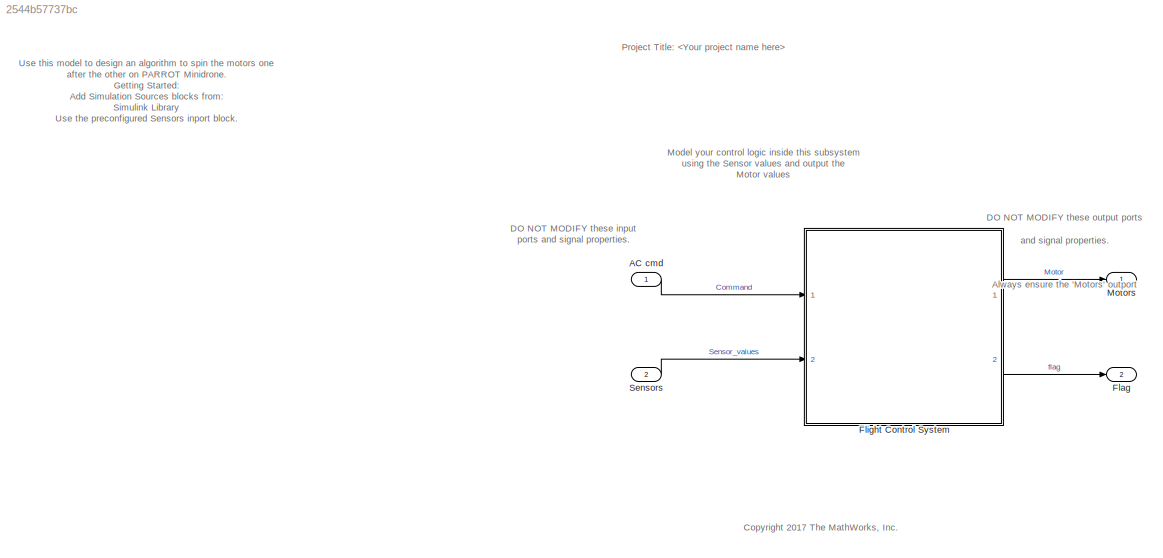
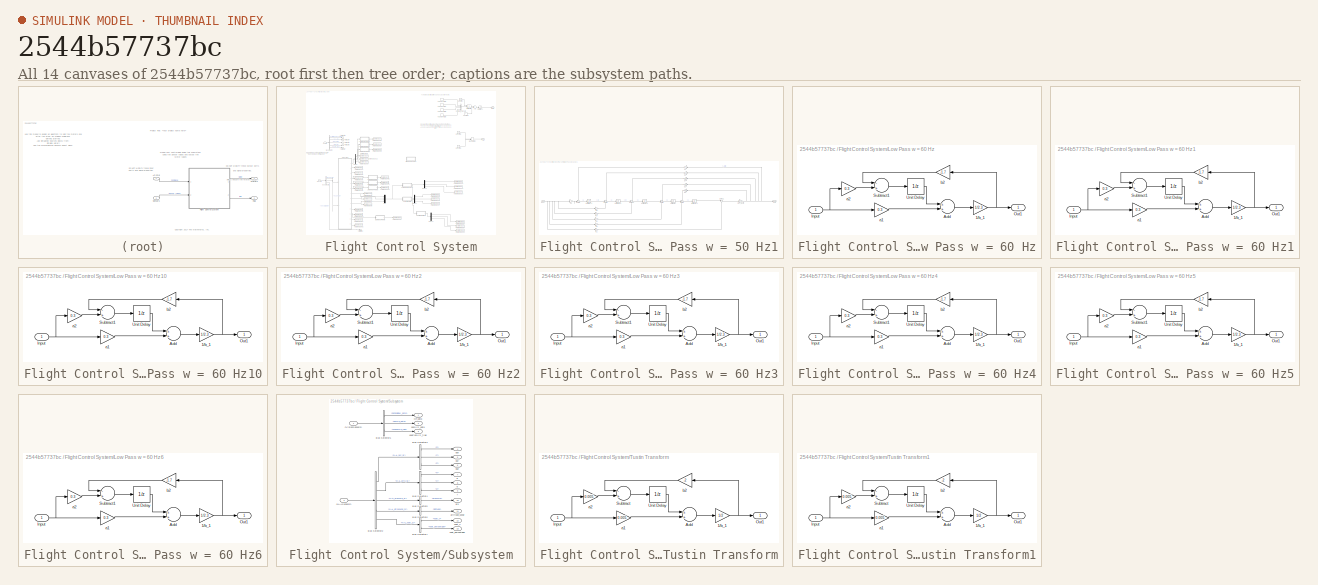
[diagram: thumbnail index - all 14 canvases of the model, root first then tree order]
MODEL slx_2544b57737bc
KIND model
CONFIG AbsTol = auto
CONFIG EnableMultiTasking = off
CONFIG FixedStep = 0.005
CONFIG InitFcn = load('BusDefinitions.mat')
CONFIG MaxStep = auto
CONFIG MinStep = auto
CONFIG RelTol = 1e-3
CONFIG SampleTimeConstraint = Unconstrained
CONFIG Solver = FixedStepAuto
CONFIG SolverName = FixedStepAuto
CONFIG StartTime = 0.0
CONFIG StopTime = 10
BLOCK [Inport] AC cmd
  BusOutputAsStruct = on
  IconDisplay = Port number
  OutDataTypeStr = Bus: CommandBus
BLOCK [Outport] Flag
  IconDisplay = Port number
  OutDataTypeStr = uint8
  Port = 2
  PortDimensions = 1
  VectorParamsAs1DForOutWhenUnconnected = off
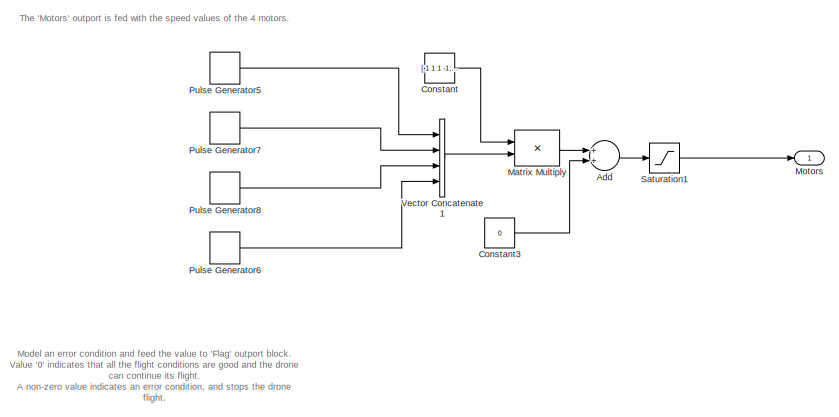
[diagram: Flight Control System - part 1/4, top right region]
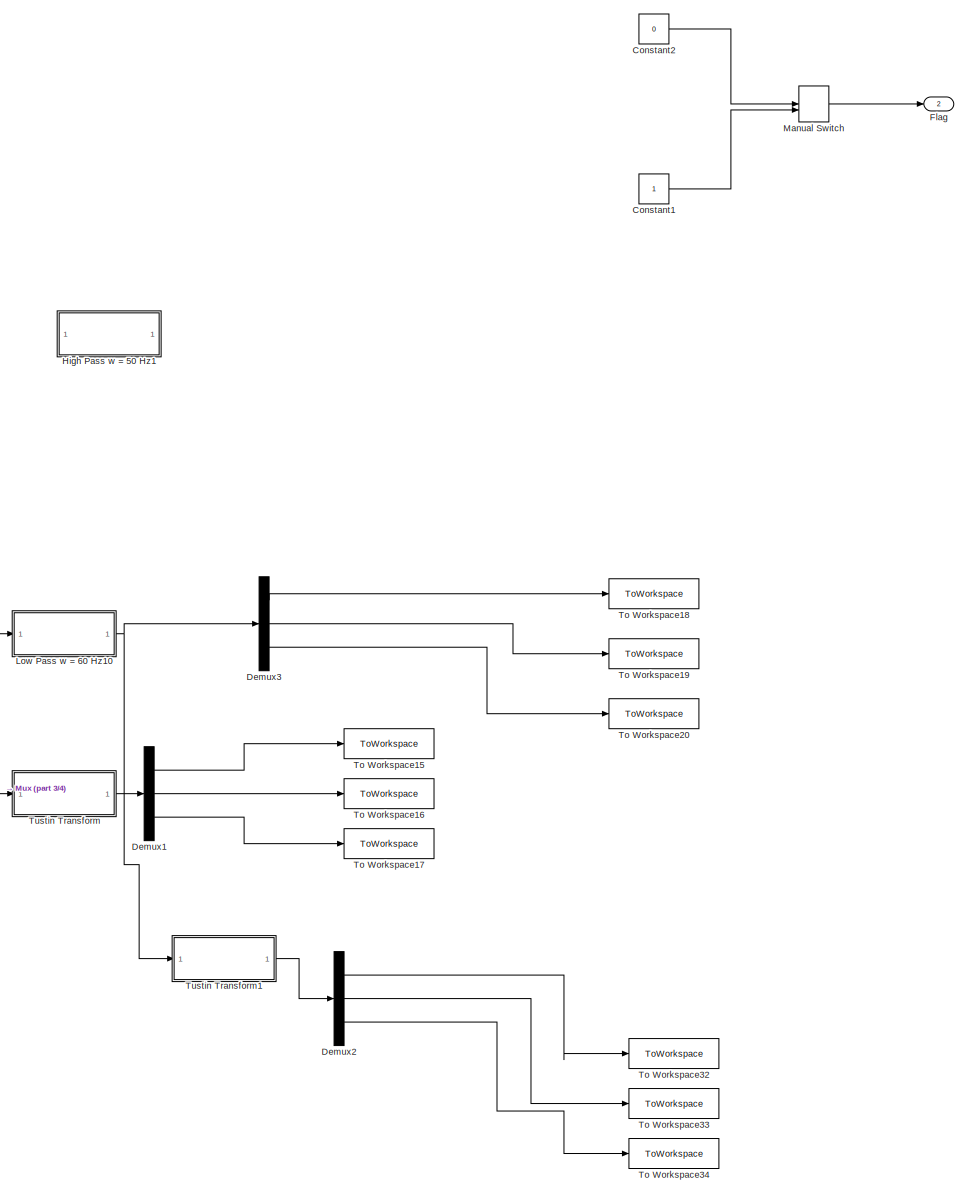
[diagram: Flight Control System - part 2/4, right side, full height]
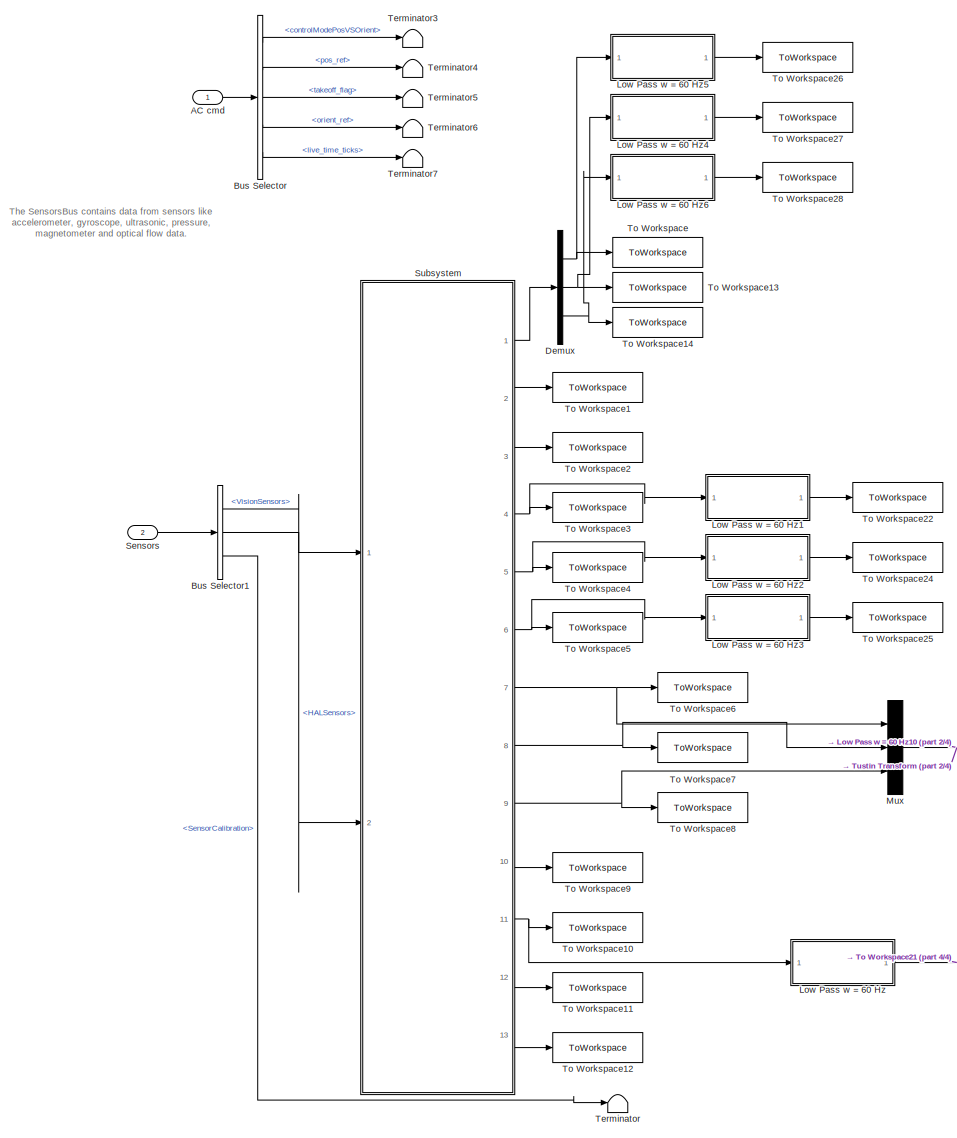
[diagram: Flight Control System - part 3/4, middle left region]
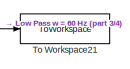
[diagram: Flight Control System - part 4/4, bottom center region]
BLOCK [SubSystem] Flight Control System
  Ports = [2, 2]
  RTWSystemCode = Reusable function
  RequestExecContextInheritance = off
BLOCK [Inport] Flight Control System/AC cmd
  IconDisplay = Port number
BLOCK [Sum] Flight Control System/Add
  InputSameDT = off
  OutDataTypeStr = Inherit: Inherit via internal rule
  Ports = [2, 1]
  SaturateOnIntegerOverflow = off
BLOCK [BusSelector] Flight Control System/Bus Selector
  OutputAsBus = off
  OutputSignals = controlModePosVSOrient,pos_ref,takeoff_flag,orient_ref,live_time_ticks
  Ports = [1, 5]
BLOCK [BusSelector] Flight Control System/Bus Selector1
  OutputAsBus = off
  OutputSignals = VisionSensors,HALSensors,SensorCalibration
  Ports = [1, 3]
BLOCK [Constant] Flight Control System/Constant
  Value = [ 1 1 1 -1; 1 1 -1 1; 1 -1 -1 -1; 1 -1  1 1]
BLOCK [Constant] Flight Control System/Constant1
  OutDataTypeStr = uint8
BLOCK [Constant] Flight Control System/Constant2
  OutDataTypeStr = uint8
  Value = 0
BLOCK [Constant] Flight Control System/Constant3
  Value = 0
BLOCK [Demux] Flight Control System/Demux
  DisplayOption = bar
  Outputs = 3
  Ports = [1, 3]
BLOCK [Demux] Flight Control System/Demux1
  DisplayOption = bar
  Outputs = 3
  Ports = [1, 3]
BLOCK [Demux] Flight Control System/Demux2
  DisplayOption = bar
  Outputs = 3
  Ports = [1, 3]
BLOCK [Demux] Flight Control System/Demux3
  DisplayOption = bar
  Outputs = 3
  Ports = [1, 3]
BLOCK [Outport] Flight Control System/Flag
  IconDisplay = Port number
  Port = 2
  VectorParamsAs1DForOutWhenUnconnected = off
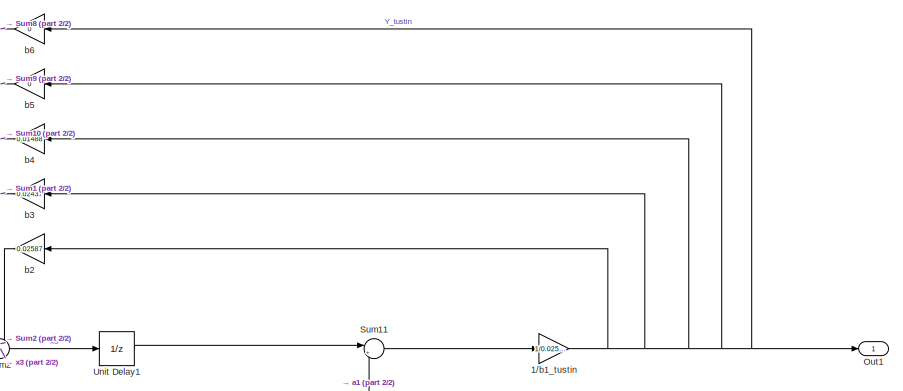
[diagram: Flight Control System/High Pass w = 50 Hz1 - part 1/2, top right region]
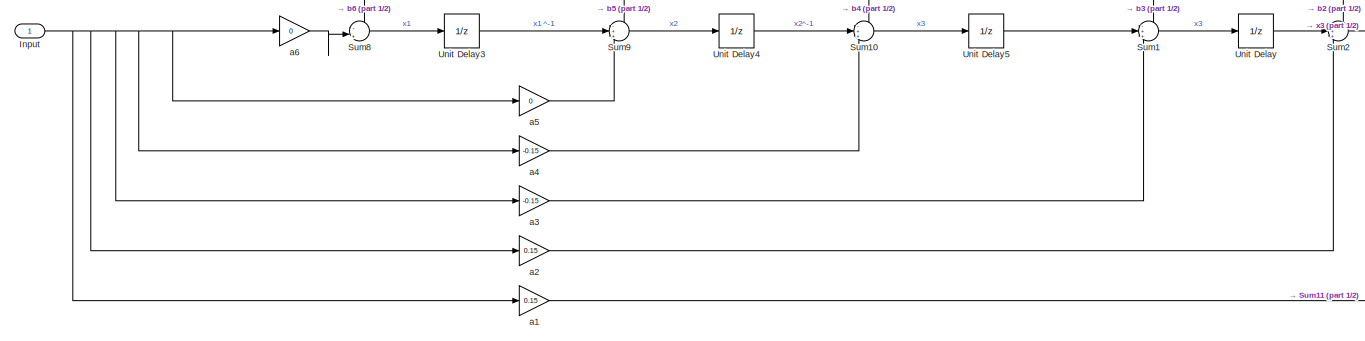
[diagram: Flight Control System/High Pass w = 50 Hz1 - part 2/2, bottom left region]
BLOCK [SubSystem] Flight Control System/High Pass w = 50 Hz1
  Commented = on
  Ports = [1, 1]
  RequestExecContextInheritance = off
BLOCK [Gain] Flight Control System/High Pass w = 50 Hz1/1//b1_tustin
  Gain = 1/0.02587
  OutDataTypeStr = Inherit: Inherit via internal rule
  ParamDataTypeStr = Inherit: Inherit via internal rule
  SaturateOnIntegerOverflow = off
BLOCK [Inport] Flight Control System/High Pass w = 50 Hz1/Input
  IconDisplay = Port number
BLOCK [Outport] Flight Control System/High Pass w = 50 Hz1/Out1
  IconDisplay = Port number
BLOCK [Sum] Flight Control System/High Pass w = 50 Hz1/Sum1
  IconShape = round
  InputSameDT = off
  Inputs = -++
  OutDataTypeStr = Inherit: Inherit via internal rule
  Ports = [3, 1]
  SaturateOnIntegerOverflow = off
BLOCK [Sum] Flight Control System/High Pass w = 50 Hz1/Sum10
  IconShape = round
  InputSameDT = off
  Inputs = -++
  OutDataTypeStr = Inherit: Inherit via internal rule
  Ports = [3, 1]
  SaturateOnIntegerOverflow = off
BLOCK [Sum] Flight Control System/High Pass w = 50 Hz1/Sum11
  IconShape = round
  InputSameDT = off
  Inputs = |++
  OutDataTypeStr = Inherit: Inherit via internal rule
  Ports = [2, 1]
  SaturateOnIntegerOverflow = off
BLOCK [Sum] Flight Control System/High Pass w = 50 Hz1/Sum2
  IconShape = round
  InputSameDT = off
  Inputs = -++
  OutDataTypeStr = Inherit: Inherit via internal rule
  Ports = [3, 1]
  SaturateOnIntegerOverflow = off
BLOCK [Sum] Flight Control System/High Pass w = 50 Hz1/Sum8
  IconShape = round
  InputSameDT = off
  Inputs = -|+
  OutDataTypeStr = Inherit: Inherit via internal rule
  Ports = [2, 1]
  SaturateOnIntegerOverflow = off
BLOCK [Sum] Flight Control System/High Pass w = 50 Hz1/Sum9
  IconShape = round
  InputSameDT = off
  Inputs = -++
  OutDataTypeStr = Inherit: Inherit via internal rule
  Ports = [3, 1]
  SaturateOnIntegerOverflow = off
BLOCK [UnitDelay] Flight Control System/High Pass w = 50 Hz1/Unit Delay
  HasFrameUpgradeWarning = on
  SampleTime = -1
BLOCK [UnitDelay] Flight Control System/High Pass w = 50 Hz1/Unit Delay1
  HasFrameUpgradeWarning = on
  SampleTime = -1
BLOCK [UnitDelay] Flight Control System/High Pass w = 50 Hz1/Unit Delay3
  HasFrameUpgradeWarning = on
  SampleTime = .1
BLOCK [UnitDelay] Flight Control System/High Pass w = 50 Hz1/Unit Delay4
  HasFrameUpgradeWarning = on
  SampleTime = 0.1
BLOCK [UnitDelay] Flight Control System/High Pass w = 50 Hz1/Unit Delay5
  HasFrameUpgradeWarning = on
  SampleTime = 0.1
BLOCK [Gain] Flight Control System/High Pass w = 50 Hz1/a1
  Gain = 0.15
  OutDataTypeStr = Inherit: Inherit via internal rule
  ParamDataTypeStr = Inherit: Inherit via internal rule
  SaturateOnIntegerOverflow = off
BLOCK [Gain] Flight Control System/High Pass w = 50 Hz1/a2
  Gain = 0.15
  OutDataTypeStr = Inherit: Inherit via internal rule
  ParamDataTypeStr = Inherit: Inherit via internal rule
  SaturateOnIntegerOverflow = off
BLOCK [Gain] Flight Control System/High Pass w = 50 Hz1/a3
  Gain = -0.15
  OutDataTypeStr = Inherit: Inherit via internal rule
  ParamDataTypeStr = Inherit: Inherit via internal rule
  SaturateOnIntegerOverflow = off
BLOCK [Gain] Flight Control System/High Pass w = 50 Hz1/a4 
  Gain = -0.15
  OutDataTypeStr = Inherit: Inherit via internal rule
  ParamDataTypeStr = Inherit: Inherit via internal rule
  SaturateOnIntegerOverflow = off
BLOCK [Gain] Flight Control System/High Pass w = 50 Hz1/a5
  Gain = 0
  OutDataTypeStr = Inherit: Inherit via internal rule
  ParamDataTypeStr = Inherit: Inherit via internal rule
  SaturateOnIntegerOverflow = off
BLOCK [Gain] Flight Control System/High Pass w = 50 Hz1/a6
  Gain = 0
  OutDataTypeStr = Inherit: Inherit via internal rule
  ParamDataTypeStr = Inherit: Inherit via internal rule
  SaturateOnIntegerOverflow = off
BLOCK [Gain] Flight Control System/High Pass w = 50 Hz1/b2
  Gain = 0.02587
  OutDataTypeStr = Inherit: Inherit via internal rule
  ParamDataTypeStr = Inherit: Inherit via internal rule
  SaturateOnIntegerOverflow = off
BLOCK [Gain] Flight Control System/High Pass w = 50 Hz1/b3
  Gain = 0.02437
  OutDataTypeStr = Inherit: Inherit via internal rule
  ParamDataTypeStr = Inherit: Inherit via internal rule
  SaturateOnIntegerOverflow = off
BLOCK [Gain] Flight Control System/High Pass w = 50 Hz1/b4
  Gain = 0.01488
  OutDataTypeStr = Inherit: Inherit via internal rule
  ParamDataTypeStr = Inherit: Inherit via internal rule
  SaturateOnIntegerOverflow = off
BLOCK [Gain] Flight Control System/High Pass w = 50 Hz1/b5
  Gain = 0
  OutDataTypeStr = Inherit: Inherit via internal rule
  ParamDataTypeStr = Inherit: Inherit via internal rule
  SaturateOnIntegerOverflow = off
BLOCK [Gain] Flight Control System/High Pass w = 50 Hz1/b6
  Gain = 0
  OutDataTypeStr = Inherit: Inherit via internal rule
  ParamDataTypeStr = Inherit: Inherit via internal rule
  SaturateOnIntegerOverflow = off
BLOCK [SubSystem] Flight Control System/Low Pass w = 60 Hz
  Ports = [1, 1]
  RequestExecContextInheritance = off
BLOCK [Gain] Flight Control System/Low Pass w = 60 Hz/1//b_1
  Gain = 1/2.3
  OutDataTypeStr = Inherit: Inherit via internal rule
  ParamDataTypeStr = Inherit: Inherit via internal rule
  SaturateOnIntegerOverflow = off
BLOCK [Sum] Flight Control System/Low Pass w = 60 Hz/Add
  InputSameDT = off
  OutDataTypeStr = Inherit: Inherit via internal rule
  Ports = [2, 1]
  SaturateOnIntegerOverflow = off
BLOCK [Inport] Flight Control System/Low Pass w = 60 Hz/Input
  IconDisplay = Port number
BLOCK [Outport] Flight Control System/Low Pass w = 60 Hz/Out1
  IconDisplay = Port number
BLOCK [Sum] Flight Control System/Low Pass w = 60 Hz/Subtract1
  InputSameDT = off
  Inputs = -+
  OutDataTypeStr = Inherit: Inherit via internal rule
  Ports = [2, 1]
  SaturateOnIntegerOverflow = off
BLOCK [UnitDelay] Flight Control System/Low Pass w = 60 Hz/Unit Delay
  HasFrameUpgradeWarning = on
  SampleTime = -1
BLOCK [Gain] Flight Control System/Low Pass w = 60 Hz/a1
  Gain = 0.3
  OutDataTypeStr = Inherit: Inherit via internal rule
  ParamDataTypeStr = Inherit: Inherit via internal rule
  SaturateOnIntegerOverflow = off
BLOCK [Gain] Flight Control System/Low Pass w = 60 Hz/a2
  Gain = 0.3
  OutDataTypeStr = Inherit: Inherit via internal rule
  ParamDataTypeStr = Inherit: Inherit via internal rule
  SaturateOnIntegerOverflow = off
BLOCK [Gain] Flight Control System/Low Pass w = 60 Hz/b2
  Gain = -1.7
  OutDataTypeStr = Inherit: Inherit via internal rule
  ParamDataTypeStr = Inherit: Inherit via internal rule
  SaturateOnIntegerOverflow = off
BLOCK [SubSystem] Flight Control System/Low Pass w = 60 Hz1
  Ports = [1, 1]
  RequestExecContextInheritance = off
BLOCK [Gain] Flight Control System/Low Pass w = 60 Hz1/1//b_1
  Gain = 1/2.3
  OutDataTypeStr = Inherit: Inherit via internal rule
  ParamDataTypeStr = Inherit: Inherit via internal rule
  SaturateOnIntegerOverflow = off
BLOCK [Sum] Flight Control System/Low Pass w = 60 Hz1/Add
  InputSameDT = off
  OutDataTypeStr = Inherit: Inherit via internal rule
  Ports = [2, 1]
  SaturateOnIntegerOverflow = off
BLOCK [Inport] Flight Control System/Low Pass w = 60 Hz1/Input
  IconDisplay = Port number
BLOCK [Outport] Flight Control System/Low Pass w = 60 Hz1/Out1
  IconDisplay = Port number
BLOCK [Sum] Flight Control System/Low Pass w = 60 Hz1/Subtract1
  InputSameDT = off
  Inputs = -+
  OutDataTypeStr = Inherit: Inherit via internal rule
  Ports = [2, 1]
  SaturateOnIntegerOverflow = off
BLOCK [UnitDelay] Flight Control System/Low Pass w = 60 Hz1/Unit Delay
  HasFrameUpgradeWarning = on
  SampleTime = -1
BLOCK [Gain] Flight Control System/Low Pass w = 60 Hz1/a1
  Gain = 0.3
  OutDataTypeStr = Inherit: Inherit via internal rule
  ParamDataTypeStr = Inherit: Inherit via internal rule
  SaturateOnIntegerOverflow = off
BLOCK [Gain] Flight Control System/Low Pass w = 60 Hz1/a2
  Gain = 0.3
  OutDataTypeStr = Inherit: Inherit via internal rule
  ParamDataTypeStr = Inherit: Inherit via internal rule
  SaturateOnIntegerOverflow = off
BLOCK [Gain] Flight Control System/Low Pass w = 60 Hz1/b2
  Gain = -1.7
  OutDataTypeStr = Inherit: Inherit via internal rule
  ParamDataTypeStr = Inherit: Inherit via internal rule
  SaturateOnIntegerOverflow = off
BLOCK [SubSystem] Flight Control System/Low Pass w = 60 Hz10
  Ports = [1, 1]
  RequestExecContextInheritance = off
BLOCK [Gain] Flight Control System/Low Pass w = 60 Hz10/1//b_1
  Gain = 1/2.3
  OutDataTypeStr = Inherit: Inherit via internal rule
  ParamDataTypeStr = Inherit: Inherit via internal rule
  SaturateOnIntegerOverflow = off
BLOCK [Sum] Flight Control System/Low Pass w = 60 Hz10/Add
  InputSameDT = off
  OutDataTypeStr = Inherit: Inherit via internal rule
  Ports = [2, 1]
  SaturateOnIntegerOverflow = off
BLOCK [Inport] Flight Control System/Low Pass w = 60 Hz10/Input
  IconDisplay = Port number
BLOCK [Outport] Flight Control System/Low Pass w = 60 Hz10/Out1
  IconDisplay = Port number
BLOCK [Sum] Flight Control System/Low Pass w = 60 Hz10/Subtract1
  InputSameDT = off
  Inputs = -+
  OutDataTypeStr = Inherit: Inherit via internal rule
  Ports = [2, 1]
  SaturateOnIntegerOverflow = off
BLOCK [UnitDelay] Flight Control System/Low Pass w = 60 Hz10/Unit Delay
  HasFrameUpgradeWarning = on
  SampleTime = -1
BLOCK [Gain] Flight Control System/Low Pass w = 60 Hz10/a1
  Gain = 0.3
  OutDataTypeStr = Inherit: Inherit via internal rule
  ParamDataTypeStr = Inherit: Inherit via internal rule
  SaturateOnIntegerOverflow = off
BLOCK [Gain] Flight Control System/Low Pass w = 60 Hz10/a2
  Gain = 0.3
  OutDataTypeStr = Inherit: Inherit via internal rule
  ParamDataTypeStr = Inherit: Inherit via internal rule
  SaturateOnIntegerOverflow = off
BLOCK [Gain] Flight Control System/Low Pass w = 60 Hz10/b2
  Gain = -1.7
  OutDataTypeStr = Inherit: Inherit via internal rule
  ParamDataTypeStr = Inherit: Inherit via internal rule
  SaturateOnIntegerOverflow = off
BLOCK [SubSystem] Flight Control System/Low Pass w = 60 Hz2
  Ports = [1, 1]
  RequestExecContextInheritance = off
BLOCK [Gain] Flight Control System/Low Pass w = 60 Hz2/1//b_1
  Gain = 1/2.3
  OutDataTypeStr = Inherit: Inherit via internal rule
  ParamDataTypeStr = Inherit: Inherit via internal rule
  SaturateOnIntegerOverflow = off
BLOCK [Sum] Flight Control System/Low Pass w = 60 Hz2/Add
  InputSameDT = off
  OutDataTypeStr = Inherit: Inherit via internal rule
  Ports = [2, 1]
  SaturateOnIntegerOverflow = off
BLOCK [Inport] Flight Control System/Low Pass w = 60 Hz2/Input
  IconDisplay = Port number
BLOCK [Outport] Flight Control System/Low Pass w = 60 Hz2/Out1
  IconDisplay = Port number
BLOCK [Sum] Flight Control System/Low Pass w = 60 Hz2/Subtract1
  InputSameDT = off
  Inputs = -+
  OutDataTypeStr = Inherit: Inherit via internal rule
  Ports = [2, 1]
  SaturateOnIntegerOverflow = off
BLOCK [UnitDelay] Flight Control System/Low Pass w = 60 Hz2/Unit Delay
  HasFrameUpgradeWarning = on
  SampleTime = -1
BLOCK [Gain] Flight Control System/Low Pass w = 60 Hz2/a1
  Gain = 0.3
  OutDataTypeStr = Inherit: Inherit via internal rule
  ParamDataTypeStr = Inherit: Inherit via internal rule
  SaturateOnIntegerOverflow = off
BLOCK [Gain] Flight Control System/Low Pass w = 60 Hz2/a2
  Gain = 0.3
  OutDataTypeStr = Inherit: Inherit via internal rule
  ParamDataTypeStr = Inherit: Inherit via internal rule
  SaturateOnIntegerOverflow = off
BLOCK [Gain] Flight Control System/Low Pass w = 60 Hz2/b2
  Gain = -1.7
  OutDataTypeStr = Inherit: Inherit via internal rule
  ParamDataTypeStr = Inherit: Inherit via internal rule
  SaturateOnIntegerOverflow = off
BLOCK [SubSystem] Flight Control System/Low Pass w = 60 Hz3
  Ports = [1, 1]
  RequestExecContextInheritance = off
BLOCK [Gain] Flight Control System/Low Pass w = 60 Hz3/1//b_1
  Gain = 1/2.3
  OutDataTypeStr = Inherit: Inherit via internal rule
  ParamDataTypeStr = Inherit: Inherit via internal rule
  SaturateOnIntegerOverflow = off
BLOCK [Sum] Flight Control System/Low Pass w = 60 Hz3/Add
  InputSameDT = off
  OutDataTypeStr = Inherit: Inherit via internal rule
  Ports = [2, 1]
  SaturateOnIntegerOverflow = off
BLOCK [Inport] Flight Control System/Low Pass w = 60 Hz3/Input
  IconDisplay = Port number
BLOCK [Outport] Flight Control System/Low Pass w = 60 Hz3/Out1
  IconDisplay = Port number
BLOCK [Sum] Flight Control System/Low Pass w = 60 Hz3/Subtract1
  InputSameDT = off
  Inputs = -+
  OutDataTypeStr = Inherit: Inherit via internal rule
  Ports = [2, 1]
  SaturateOnIntegerOverflow = off
BLOCK [UnitDelay] Flight Control System/Low Pass w = 60 Hz3/Unit Delay
  HasFrameUpgradeWarning = on
  SampleTime = -1
BLOCK [Gain] Flight Control System/Low Pass w = 60 Hz3/a1
  Gain = 0.3
  OutDataTypeStr = Inherit: Inherit via internal rule
  ParamDataTypeStr = Inherit: Inherit via internal rule
  SaturateOnIntegerOverflow = off
BLOCK [Gain] Flight Control System/Low Pass w = 60 Hz3/a2
  Gain = 0.3
  OutDataTypeStr = Inherit: Inherit via internal rule
  ParamDataTypeStr = Inherit: Inherit via internal rule
  SaturateOnIntegerOverflow = off
BLOCK [Gain] Flight Control System/Low Pass w = 60 Hz3/b2
  Gain = -1.7
  OutDataTypeStr = Inherit: Inherit via internal rule
  ParamDataTypeStr = Inherit: Inherit via internal rule
  SaturateOnIntegerOverflow = off
BLOCK [SubSystem] Flight Control System/Low Pass w = 60 Hz4
  Ports = [1, 1]
  RequestExecContextInheritance = off
BLOCK [Gain] Flight Control System/Low Pass w = 60 Hz4/1//b_1
  Gain = 1/2.3
  OutDataTypeStr = Inherit: Inherit via internal rule
  ParamDataTypeStr = Inherit: Inherit via internal rule
  SaturateOnIntegerOverflow = off
BLOCK [Sum] Flight Control System/Low Pass w = 60 Hz4/Add
  InputSameDT = off
  OutDataTypeStr = Inherit: Inherit via internal rule
  Ports = [2, 1]
  SaturateOnIntegerOverflow = off
BLOCK [Inport] Flight Control System/Low Pass w = 60 Hz4/Input
  IconDisplay = Port number
BLOCK [Outport] Flight Control System/Low Pass w = 60 Hz4/Out1
  IconDisplay = Port number
BLOCK [Sum] Flight Control System/Low Pass w = 60 Hz4/Subtract1
  InputSameDT = off
  Inputs = -+
  OutDataTypeStr = Inherit: Inherit via internal rule
  Ports = [2, 1]
  SaturateOnIntegerOverflow = off
BLOCK [UnitDelay] Flight Control System/Low Pass w = 60 Hz4/Unit Delay
  HasFrameUpgradeWarning = on
  SampleTime = -1
BLOCK [Gain] Flight Control System/Low Pass w = 60 Hz4/a1
  Gain = 0.3
  OutDataTypeStr = Inherit: Inherit via internal rule
  ParamDataTypeStr = Inherit: Inherit via internal rule
  SaturateOnIntegerOverflow = off
BLOCK [Gain] Flight Control System/Low Pass w = 60 Hz4/a2
  Gain = 0.3
  OutDataTypeStr = Inherit: Inherit via internal rule
  ParamDataTypeStr = Inherit: Inherit via internal rule
  SaturateOnIntegerOverflow = off
BLOCK [Gain] Flight Control System/Low Pass w = 60 Hz4/b2
  Gain = -1.7
  OutDataTypeStr = Inherit: Inherit via internal rule
  ParamDataTypeStr = Inherit: Inherit via internal rule
  SaturateOnIntegerOverflow = off
BLOCK [SubSystem] Flight Control System/Low Pass w = 60 Hz5
  Ports = [1, 1]
  RequestExecContextInheritance = off
BLOCK [Gain] Flight Control System/Low Pass w = 60 Hz5/1//b_1
  Gain = 1/2.3
  OutDataTypeStr = Inherit: Inherit via internal rule
  ParamDataTypeStr = Inherit: Inherit via internal rule
  SaturateOnIntegerOverflow = off
BLOCK [Sum] Flight Control System/Low Pass w = 60 Hz5/Add
  InputSameDT = off
  OutDataTypeStr = Inherit: Inherit via internal rule
  Ports = [2, 1]
  SaturateOnIntegerOverflow = off
BLOCK [Inport] Flight Control System/Low Pass w = 60 Hz5/Input
  IconDisplay = Port number
BLOCK [Outport] Flight Control System/Low Pass w = 60 Hz5/Out1
  IconDisplay = Port number
BLOCK [Sum] Flight Control System/Low Pass w = 60 Hz5/Subtract1
  InputSameDT = off
  Inputs = -+
  OutDataTypeStr = Inherit: Inherit via internal rule
  Ports = [2, 1]
  SaturateOnIntegerOverflow = off
BLOCK [UnitDelay] Flight Control System/Low Pass w = 60 Hz5/Unit Delay
  HasFrameUpgradeWarning = on
  SampleTime = -1
BLOCK [Gain] Flight Control System/Low Pass w = 60 Hz5/a1
  Gain = 0.3
  OutDataTypeStr = Inherit: Inherit via internal rule
  ParamDataTypeStr = Inherit: Inherit via internal rule
  SaturateOnIntegerOverflow = off
BLOCK [Gain] Flight Control System/Low Pass w = 60 Hz5/a2
  Gain = 0.3
  OutDataTypeStr = Inherit: Inherit via internal rule
  ParamDataTypeStr = Inherit: Inherit via internal rule
  SaturateOnIntegerOverflow = off
BLOCK [Gain] Flight Control System/Low Pass w = 60 Hz5/b2
  Gain = -1.7
  OutDataTypeStr = Inherit: Inherit via internal rule
  ParamDataTypeStr = Inherit: Inherit via internal rule
  SaturateOnIntegerOverflow = off
BLOCK [SubSystem] Flight Control System/Low Pass w = 60 Hz6
  Ports = [1, 1]
  RequestExecContextInheritance = off
BLOCK [Gain] Flight Control System/Low Pass w = 60 Hz6/1//b_1
  Gain = 1/2.3
  OutDataTypeStr = Inherit: Inherit via internal rule
  ParamDataTypeStr = Inherit: Inherit via internal rule
  SaturateOnIntegerOverflow = off
BLOCK [Sum] Flight Control System/Low Pass w = 60 Hz6/Add
  InputSameDT = off
  OutDataTypeStr = Inherit: Inherit via internal rule
  Ports = [2, 1]
  SaturateOnIntegerOverflow = off
BLOCK [Inport] Flight Control System/Low Pass w = 60 Hz6/Input
  IconDisplay = Port number
BLOCK [Outport] Flight Control System/Low Pass w = 60 Hz6/Out1
  IconDisplay = Port number
BLOCK [Sum] Flight Control System/Low Pass w = 60 Hz6/Subtract1
  InputSameDT = off
  Inputs = -+
  OutDataTypeStr = Inherit: Inherit via internal rule
  Ports = [2, 1]
  SaturateOnIntegerOverflow = off
BLOCK [UnitDelay] Flight Control System/Low Pass w = 60 Hz6/Unit Delay
  HasFrameUpgradeWarning = on
  SampleTime = -1
BLOCK [Gain] Flight Control System/Low Pass w = 60 Hz6/a1
  Gain = 0.3
  OutDataTypeStr = Inherit: Inherit via internal rule
  ParamDataTypeStr = Inherit: Inherit via internal rule
  SaturateOnIntegerOverflow = off
BLOCK [Gain] Flight Control System/Low Pass w = 60 Hz6/a2
  Gain = 0.3
  OutDataTypeStr = Inherit: Inherit via internal rule
  ParamDataTypeStr = Inherit: Inherit via internal rule
  SaturateOnIntegerOverflow = off
BLOCK [Gain] Flight Control System/Low Pass w = 60 Hz6/b2
  Gain = -1.7
  OutDataTypeStr = Inherit: Inherit via internal rule
  ParamDataTypeStr = Inherit: Inherit via internal rule
  SaturateOnIntegerOverflow = off
BLOCK [ManualSwitch] Flight Control System/Manual Switch
BLOCK [Product] Flight Control System/Matrix Multiply
  InputSameDT = off
  Multiplication = Matrix(*)
  OutDataTypeStr = Inherit: Inherit via internal rule
  Ports = [2, 1]
  RndMeth = Floor
  SaturateOnIntegerOverflow = off
BLOCK [Outport] Flight Control System/Motors
  IconDisplay = Port number
  VectorParamsAs1DForOutWhenUnconnected = off
BLOCK [Mux] Flight Control System/Mux
  DisplayOption = bar
  Inputs = 3
  Ports = [3, 1]
BLOCK [DiscretePulseGenerator] Flight Control System/Pulse Generator5
  Amplitude = 200
  Period = 20
  Ports = [0, 1]
  PulseType = Time based
  PulseWidth = 50
  SampleTime = 0.005
BLOCK [DiscretePulseGenerator] Flight Control System/Pulse Generator6
  Amplitude = 400
  Period = 16
  PhaseDelay = 20
  Ports = [0, 1]
  PulseType = Time based
  PulseWidth = 25
  SampleTime = 0.005
BLOCK [DiscretePulseGenerator] Flight Control System/Pulse Generator7
  Amplitude = 400
  Period = 16
  PhaseDelay = 20
  Ports = [0, 1]
  PulseType = Time based
  PulseWidth = 25
  SampleTime = 0.005
BLOCK [DiscretePulseGenerator] Flight Control System/Pulse Generator8
  Amplitude = 400
  Period = 16
  PhaseDelay = 20
  Ports = [0, 1]
  PulseType = Time based
  PulseWidth = 25
  SampleTime = 0.005
BLOCK [Saturate] Flight Control System/Saturation1
  InputPortMap = u0
  LowerLimit = 0
  OutDataTypeStr = single
  Ports = [1, 1]
  UpperLimit = 500
BLOCK [Inport] Flight Control System/Sensors
  IconDisplay = Port number
  Port = 2
BLOCK [SubSystem] Flight Control System/Subsystem
  Ports = [2, 13]
  RequestExecContextInheritance = off
BLOCK [Inport] Flight Control System/Subsystem/<HALSensors>
  IconDisplay = Port number
  Port = 2
BLOCK [Inport] Flight Control System/Subsystem/<VisionSensors>
  IconDisplay = Port number
BLOCK [BusSelector] Flight Control System/Subsystem/Bus Selector1
  OutputAsBus = off
  OutputSignals = opticalFlow_data,posVIS_data,usePosVIS_flag
  Ports = [1, 3]
BLOCK [BusSelector] Flight Control System/Subsystem/Bus Selector2
  OutputAsBus = off
  OutputSignals = HAL_acc_SI,HAL_gyro_SI,HAL_pressure_SI,HAL_ultrasound_SI,HAL_vbat_SI
  Ports = [1, 5]
BLOCK [BusSelector] Flight Control System/Subsystem/Bus Selector3
  OutputAsBus = off
  OutputSignals = x,y,z
  Ports = [1, 3]
BLOCK [BusSelector] Flight Control System/Subsystem/Bus Selector4
  OutputAsBus = off
  OutputSignals = x,y,z
  Ports = [1, 3]
BLOCK [BusSelector] Flight Control System/Subsystem/Bus Selector5
  OutputAsBus = off
  OutputSignals = pressure
  Ports = [1, 1]
BLOCK [BusSelector] Flight Control System/Subsystem/Bus Selector6
  OutputAsBus = off
  OutputSignals = altitude
  Ports = [1, 1]
BLOCK [BusSelector] Flight Control System/Subsystem/Bus Selector7
  OutputAsBus = off
  OutputSignals = vbat_V,vbat_percentage
  Ports = [1, 2]
BLOCK [Outport] Flight Control System/Subsystem/OF_data
  IconDisplay = Port number
  VectorParamsAs1DForOutWhenUnconnected = off
BLOCK [Outport] Flight Control System/Subsystem/altitude_sonar
  IconDisplay = Port number
  Port = 11
  VectorParamsAs1DForOutWhenUnconnected = off
BLOCK [Outport] Flight Control System/Subsystem/ddx
  IconDisplay = Port number
  Port = 4
  VectorParamsAs1DForOutWhenUnconnected = off
BLOCK [Outport] Flight Control System/Subsystem/ddy
  IconDisplay = Port number
  Port = 5
  VectorParamsAs1DForOutWhenUnconnected = off
BLOCK [Outport] Flight Control System/Subsystem/ddz
  IconDisplay = Port number
  Port = 6
  VectorParamsAs1DForOutWhenUnconnected = off
BLOCK [Outport] Flight Control System/Subsystem/p
  IconDisplay = Port number
  Port = 7
  VectorParamsAs1DForOutWhenUnconnected = off
BLOCK [Outport] Flight Control System/Subsystem/posVIS_data
  IconDisplay = Port number
  Port = 2
  VectorParamsAs1DForOutWhenUnconnected = off
BLOCK [Outport] Flight Control System/Subsystem/prs
  IconDisplay = Port number
  Port = 10
  VectorParamsAs1DForOutWhenUnconnected = off
BLOCK [Outport] Flight Control System/Subsystem/q
  IconDisplay = Port number
  Port = 8
  VectorParamsAs1DForOutWhenUnconnected = off
BLOCK [Outport] Flight Control System/Subsystem/r
  IconDisplay = Port number
  Port = 9
  VectorParamsAs1DForOutWhenUnconnected = off
BLOCK [Outport] Flight Control System/Subsystem/usePosVIS_flag
  IconDisplay = Port number
  Port = 3
  VectorParamsAs1DForOutWhenUnconnected = off
BLOCK [Outport] Flight Control System/Subsystem/vbat_V
  IconDisplay = Port number
  Port = 12
  VectorParamsAs1DForOutWhenUnconnected = off
BLOCK [Outport] Flight Control System/Subsystem/vbat_percentage
  IconDisplay = Port number
  Port = 13
  VectorParamsAs1DForOutWhenUnconnected = off
BLOCK [Terminator] Flight Control System/Terminator
BLOCK [Terminator] Flight Control System/Terminator3
BLOCK [Terminator] Flight Control System/Terminator4
BLOCK [Terminator] Flight Control System/Terminator5
BLOCK [Terminator] Flight Control System/Terminator6
BLOCK [Terminator] Flight Control System/Terminator7
BLOCK [ToWorkspace] Flight Control System/To Workspace
  FixptAsFi = on
  MaxDataPoints = inf
  Ports = [1]
  SampleTime = 0.005
  SaveFormat = Structure With Time
  VariableName = u
BLOCK [ToWorkspace] Flight Control System/To Workspace1
  FixptAsFi = on
  MaxDataPoints = inf
  Ports = [1]
  SampleTime = 0.005
  SaveFormat = Structure With Time
  VariableName = posVIS_data
BLOCK [ToWorkspace] Flight Control System/To Workspace10
  FixptAsFi = on
  MaxDataPoints = inf
  Ports = [1]
  SampleTime = 0.005
  SaveFormat = Structure With Time
  VariableName = altitude_sonar
BLOCK [ToWorkspace] Flight Control System/To Workspace11
  FixptAsFi = on
  MaxDataPoints = inf
  Ports = [1]
  SampleTime = 0.005
  SaveFormat = Structure With Time
  VariableName = v_bat_V
BLOCK [ToWorkspace] Flight Control System/To Workspace12
  FixptAsFi = on
  MaxDataPoints = inf
  Ports = [1]
  SampleTime = 0.005
  SaveFormat = Structure With Time
  VariableName = vbat_percentage
BLOCK [ToWorkspace] Flight Control System/To Workspace13
  FixptAsFi = on
  MaxDataPoints = inf
  Ports = [1]
  SampleTime = 0.005
  SaveFormat = Structure With Time
  VariableName = v
BLOCK [ToWorkspace] Flight Control System/To Workspace14
  FixptAsFi = on
  MaxDataPoints = inf
  Ports = [1]
  SampleTime = 0.005
  SaveFormat = Structure With Time
  VariableName = w
BLOCK [ToWorkspace] Flight Control System/To Workspace15
  FixptAsFi = on
  MaxDataPoints = inf
  Ports = [1]
  SampleTime = 0.005
  SaveFormat = Structure With Time
  VariableName = phi
BLOCK [ToWorkspace] Flight Control System/To Workspace16
  FixptAsFi = on
  MaxDataPoints = inf
  Ports = [1]
  SampleTime = 0.005
  SaveFormat = Structure With Time
  VariableName = theta
BLOCK [ToWorkspace] Flight Control System/To Workspace17
  FixptAsFi = on
  MaxDataPoints = inf
  Ports = [1]
  SampleTime = 0.005
  SaveFormat = Structure With Time
  VariableName = psi
BLOCK [ToWorkspace] Flight Control System/To Workspace18
  FixptAsFi = on
  MaxDataPoints = inf
  Ports = [1]
  SampleTime = 0.005
  SaveFormat = Structure With Time
  VariableName = p1
BLOCK [ToWorkspace] Flight Control System/To Workspace19
  FixptAsFi = on
  MaxDataPoints = inf
  Ports = [1]
  SampleTime = 0.005
  SaveFormat = Structure With Time
  VariableName = q1
BLOCK [ToWorkspace] Flight Control System/To Workspace2
  FixptAsFi = on
  MaxDataPoints = inf
  Ports = [1]
  SampleTime = 0.005
  SaveFormat = Structure With Time
  VariableName = usePosVIS_flag
BLOCK [ToWorkspace] Flight Control System/To Workspace20
  FixptAsFi = on
  MaxDataPoints = inf
  Ports = [1]
  SampleTime = 0.005
  SaveFormat = Structure With Time
  VariableName = r1
BLOCK [ToWorkspace] Flight Control System/To Workspace21
  FixptAsFi = on
  MaxDataPoints = inf
  Ports = [1]
  SampleTime = 0.005
  SaveFormat = Structure With Time
  VariableName = altitude_sonar_filtered
BLOCK [ToWorkspace] Flight Control System/To Workspace22
  FixptAsFi = on
  MaxDataPoints = inf
  Ports = [1]
  SampleTime = 0.005
  SaveFormat = Structure With Time
  VariableName = accel_x1
BLOCK [ToWorkspace] Flight Control System/To Workspace24
  FixptAsFi = on
  MaxDataPoints = inf
  Ports = [1]
  SampleTime = 0.005
  SaveFormat = Structure With Time
  VariableName = accel_y1
BLOCK [ToWorkspace] Flight Control System/To Workspace25
  FixptAsFi = on
  MaxDataPoints = inf
  Ports = [1]
  SampleTime = 0.005
  SaveFormat = Structure With Time
  VariableName = accel_z1
BLOCK [ToWorkspace] Flight Control System/To Workspace26
  FixptAsFi = on
  MaxDataPoints = inf
  Ports = [1]
  SampleTime = 0.005
  SaveFormat = Structure With Time
  VariableName = u1
BLOCK [ToWorkspace] Flight Control System/To Workspace27
  FixptAsFi = on
  MaxDataPoints = inf
  Ports = [1]
  SampleTime = 0.005
  SaveFormat = Structure With Time
  VariableName = v1
BLOCK [ToWorkspace] Flight Control System/To Workspace28
  FixptAsFi = on
  MaxDataPoints = inf
  Ports = [1]
  SampleTime = 0.005
  SaveFormat = Structure With Time
  VariableName = w1
BLOCK [ToWorkspace] Flight Control System/To Workspace3
  FixptAsFi = on
  MaxDataPoints = inf
  Ports = [1]
  SampleTime = 0.005
  SaveFormat = Structure With Time
  VariableName = accel_x
BLOCK [ToWorkspace] Flight Control System/To Workspace32
  FixptAsFi = on
  MaxDataPoints = inf
  Ports = [1]
  SampleTime = 0.005
  SaveFormat = Structure With Time
  VariableName = phi1
BLOCK [ToWorkspace] Flight Control System/To Workspace33
  FixptAsFi = on
  MaxDataPoints = inf
  Ports = [1]
  SampleTime = 0.005
  SaveFormat = Structure With Time
  VariableName = theta1
BLOCK [ToWorkspace] Flight Control System/To Workspace34
  FixptAsFi = on
  MaxDataPoints = inf
  Ports = [1]
  SampleTime = 0.005
  SaveFormat = Structure With Time
  VariableName = psi1
BLOCK [ToWorkspace] Flight Control System/To Workspace4
  FixptAsFi = on
  MaxDataPoints = inf
  Ports = [1]
  SampleTime = 0.005
  SaveFormat = Structure With Time
  VariableName = accel_y
BLOCK [ToWorkspace] Flight Control System/To Workspace5
  FixptAsFi = on
  MaxDataPoints = inf
  Ports = [1]
  SampleTime = 0.005
  SaveFormat = Structure With Time
  VariableName = accel_z
BLOCK [ToWorkspace] Flight Control System/To Workspace6
  FixptAsFi = on
  MaxDataPoints = inf
  Ports = [1]
  SampleTime = 0.005
  SaveFormat = Structure With Time
  VariableName = p
BLOCK [ToWorkspace] Flight Control System/To Workspace7
  FixptAsFi = on
  MaxDataPoints = inf
  Ports = [1]
  SampleTime = 0.005
  SaveFormat = Structure With Time
  VariableName = q
BLOCK [ToWorkspace] Flight Control System/To Workspace8
  FixptAsFi = on
  MaxDataPoints = inf
  Ports = [1]
  SampleTime = 0.005
  SaveFormat = Structure With Time
  VariableName = r
BLOCK [ToWorkspace] Flight Control System/To Workspace9
  FixptAsFi = on
  MaxDataPoints = inf
  Ports = [1]
  SampleTime = 0.005
  SaveFormat = Structure With Time
  VariableName = pressure
BLOCK [SubSystem] Flight Control System/Tustin Transform
  Ports = [1, 1]
  RequestExecContextInheritance = off
BLOCK [Gain] Flight Control System/Tustin Transform/1//b_1
  Gain = 1/2
  OutDataTypeStr = Inherit: Inherit via internal rule
  ParamDataTypeStr = Inherit: Inherit via internal rule
  SaturateOnIntegerOverflow = off
BLOCK [Sum] Flight Control System/Tustin Transform/Add
  InputSameDT = off
  OutDataTypeStr = Inherit: Inherit via internal rule
  Ports = [2, 1]
  SaturateOnIntegerOverflow = off
BLOCK [Inport] Flight Control System/Tustin Transform/Input
  IconDisplay = Port number
BLOCK [Outport] Flight Control System/Tustin Transform/Out1
  IconDisplay = Port number
BLOCK [Sum] Flight Control System/Tustin Transform/Subtract
  InputSameDT = off
  Inputs = -+
  OutDataTypeStr = Inherit: Inherit via internal rule
  Ports = [2, 1]
  SaturateOnIntegerOverflow = off
BLOCK [UnitDelay] Flight Control System/Tustin Transform/Unit Delay
  HasFrameUpgradeWarning = on
  SampleTime = -1
BLOCK [Gain] Flight Control System/Tustin Transform/a1
  Gain = 0.005
  OutDataTypeStr = Inherit: Inherit via internal rule
  ParamDataTypeStr = Inherit: Inherit via internal rule
  SaturateOnIntegerOverflow = off
BLOCK [Gain] Flight Control System/Tustin Transform/a2
  Gain = 0.005
  OutDataTypeStr = Inherit: Inherit via internal rule
  ParamDataTypeStr = Inherit: Inherit via internal rule
  SaturateOnIntegerOverflow = off
BLOCK [Gain] Flight Control System/Tustin Transform/b2
  Gain = -2
  OutDataTypeStr = Inherit: Inherit via internal rule
  ParamDataTypeStr = Inherit: Inherit via internal rule
  SaturateOnIntegerOverflow = off
BLOCK [SubSystem] Flight Control System/Tustin Transform1
  Ports = [1, 1]
  RequestExecContextInheritance = off
BLOCK [Gain] Flight Control System/Tustin Transform1/1//b_1
  Gain = 1/2
  OutDataTypeStr = Inherit: Inherit via internal rule
  ParamDataTypeStr = Inherit: Inherit via internal rule
  SaturateOnIntegerOverflow = off
BLOCK [Sum] Flight Control System/Tustin Transform1/Add
  InputSameDT = off
  OutDataTypeStr = Inherit: Inherit via internal rule
  Ports = [2, 1]
  SaturateOnIntegerOverflow = off
BLOCK [Inport] Flight Control System/Tustin Transform1/Input
  IconDisplay = Port number
BLOCK [Outport] Flight Control System/Tustin Transform1/Out1
  IconDisplay = Port number
BLOCK [Sum] Flight Control System/Tustin Transform1/Subtract
  InputSameDT = off
  Inputs = -+
  OutDataTypeStr = Inherit: Inherit via internal rule
  Ports = [2, 1]
  SaturateOnIntegerOverflow = off
BLOCK [UnitDelay] Flight Control System/Tustin Transform1/Unit Delay
  HasFrameUpgradeWarning = on
  SampleTime = -1
BLOCK [Gain] Flight Control System/Tustin Transform1/a1
  Gain = 0.005
  OutDataTypeStr = Inherit: Inherit via internal rule
  ParamDataTypeStr = Inherit: Inherit via internal rule
  SaturateOnIntegerOverflow = off
BLOCK [Gain] Flight Control System/Tustin Transform1/a2
  Gain = 0.005
  OutDataTypeStr = Inherit: Inherit via internal rule
  ParamDataTypeStr = Inherit: Inherit via internal rule
  SaturateOnIntegerOverflow = off
BLOCK [Gain] Flight Control System/Tustin Transform1/b2
  Gain = -2
  OutDataTypeStr = Inherit: Inherit via internal rule
  ParamDataTypeStr = Inherit: Inherit via internal rule
  SaturateOnIntegerOverflow = off
BLOCK [Concatenate] Flight Control System/Vector Concatenate1
  NumInputs = 4
  Ports = [4, 1]
BLOCK [Outport] Motors
  IconDisplay = Port number
  OutDataTypeStr = single
  PortDimensions = [1 4]
  VectorParamsAs1DForOutWhenUnconnected = off
BLOCK [Inport] Sensors
  BusOutputAsStruct = on
  IconDisplay = Port number
  OutDataTypeStr = Bus: SensorsBus
  Port = 2
ANNOTATION (root): Use this model to design an algorithm to spin the motors one after the other on PARROT Minidrone. Getting Started: Add Simulation Sources blocks from: Simulink Library Use the preconfigured Sensors inport block. Configure PARROT Minidrone hardware: Open Model Configuration Parameters dialog Under the Hardware Implementation option, select the desired PARROT Minidrone from the Hardware board parame...<+474ch>
ANNOTATION (root): <copyright redacted>
ANNOTATION (root): DO NOT MODIFY these input ports and signal properties.
ANNOTATION (root): DO NOT MODIFY these output ports and signal properties. Always ensure the 'Motors' outport is fed with a 1 x 4 single vector. Always ensure the 'Flag' outport is fed with a 1 x 1 uint8 value.
ANNOTATION (root): Model your control logic inside this subsystem using the Sensor values and output the Motor values
ANNOTATION (root): Project Title:
ANNOTATION Flight Control System: Model an error condition and feed the value to 'Flag' outport block. Value '0' indicates that all the flight conditions are good and the drone can continue its flight. A non-zero value indicates an error condition, and stops the drone flight.
ANNOTATION Flight Control System: The 'Motors' outport is fed with the speed values of the 4 motors.
ANNOTATION Flight Control System: The SensorsBus contains data from sensors like accelerometer, gyroscope, ultrasonic, pressure, magnetometer and optical flow data.
LINE AC cmd:1 -> Flight Control System:1
LINE Flight Control System/AC cmd:1 -> Flight Control System/Bus Selector:1
LINE Flight Control System/Add:1 -> Flight Control System/Saturation1:1
LINE Flight Control System/Bus Selector1:1 -> Flight Control System/Subsystem:1
LINE Flight Control System/Bus Selector1:2 -> Flight Control System/Subsystem:2
LINE Flight Control System/Bus Selector1:3 -> Flight Control System/Terminator:1
LINE Flight Control System/Bus Selector:1 -> Flight Control System/Terminator3:1
LINE Flight Control System/Bus Selector:2 -> Flight Control System/Terminator4:1
LINE Flight Control System/Bus Selector:3 -> Flight Control System/Terminator5:1
LINE Flight Control System/Bus Selector:4 -> Flight Control System/Terminator6:1
LINE Flight Control System/Bus Selector:5 -> Flight Control System/Terminator7:1
LINE Flight Control System/Constant1:1 -> Flight Control System/Manual Switch:2
LINE Flight Control System/Constant2:1 -> Flight Control System/Manual Switch:1
LINE Flight Control System/Constant3:1 -> Flight Control System/Add:2
LINE Flight Control System/Constant:1 -> Flight Control System/Matrix Multiply:1
LINE Flight Control System/Demux1:1 -> Flight Control System/To Workspace15:1
LINE Flight Control System/Demux1:2 -> Flight Control System/To Workspace16:1
LINE Flight Control System/Demux1:3 -> Flight Control System/To Workspace17:1
LINE Flight Control System/Demux2:1 -> Flight Control System/To Workspace32:1
LINE Flight Control System/Demux2:2 -> Flight Control System/To Workspace33:1
LINE Flight Control System/Demux2:3 -> Flight Control System/To Workspace34:1
LINE Flight Control System/Demux3:1 -> Flight Control System/To Workspace18:1
LINE Flight Control System/Demux3:2 -> Flight Control System/To Workspace19:1
LINE Flight Control System/Demux3:3 -> Flight Control System/To Workspace20:1
NET Flight Control System/Demux:1 -> Flight Control System/Low Pass w = 60 Hz5:1, Flight Control System/To Workspace:1
NET Flight Control System/Demux:2 -> Flight Control System/Low Pass w = 60 Hz4:1, Flight Control System/To Workspace13:1
NET Flight Control System/Demux:3 -> Flight Control System/Low Pass w = 60 Hz6:1, Flight Control System/To Workspace14:1
NET Flight Control System/High Pass w = 50 Hz1/1//b1_tustin:1 -> Flight Control System/High Pass w = 50 Hz1/Out1:1, Flight Control System/High Pass w = 50 Hz1/b2:1, Flight Control System/High Pass w = 50 Hz1/b3:1, Flight Control System/High Pass w = 50 Hz1/b4:1, Flight Control System/High Pass w = 50 Hz1/b5:1, Flight Control System/High Pass w = 50 Hz1/b6:1
NET Flight Control System/High Pass w = 50 Hz1/Input:1 -> Flight Control System/High Pass w = 50 Hz1/a1:1, Flight Control System/High Pass w = 50 Hz1/a2:1, Flight Control System/High Pass w = 50 Hz1/a3:1, Flight Control System/High Pass w = 50 Hz1/a4 :1, Flight Control System/High Pass w = 50 Hz1/a5:1, Flight Control System/High Pass w = 50 Hz1/a6:1
LINE Flight Control System/High Pass w = 50 Hz1/Sum10:1 -> Flight Control System/High Pass w = 50 Hz1/Unit Delay5:1
LINE Flight Control System/High Pass w = 50 Hz1/Sum11:1 -> Flight Control System/High Pass w = 50 Hz1/1//b1_tustin:1
LINE Flight Control System/High Pass w = 50 Hz1/Sum1:1 -> Flight Control System/High Pass w = 50 Hz1/Unit Delay:1
LINE Flight Control System/High Pass w = 50 Hz1/Sum2:1 -> Flight Control System/High Pass w = 50 Hz1/Unit Delay1:1
LINE Flight Control System/High Pass w = 50 Hz1/Sum8:1 -> Flight Control System/High Pass w = 50 Hz1/Unit Delay3:1
LINE Flight Control System/High Pass w = 50 Hz1/Sum9:1 -> Flight Control System/High Pass w = 50 Hz1/Unit Delay4:1
LINE Flight Control System/High Pass w = 50 Hz1/Unit Delay1:1 -> Flight Control System/High Pass w = 50 Hz1/Sum11:1
LINE Flight Control System/High Pass w = 50 Hz1/Unit Delay3:1 -> Flight Control System/High Pass w = 50 Hz1/Sum9:2
LINE Flight Control System/High Pass w = 50 Hz1/Unit Delay4:1 -> Flight Control System/High Pass w = 50 Hz1/Sum10:2
LINE Flight Control System/High Pass w = 50 Hz1/Unit Delay5:1 -> Flight Control System/High Pass w = 50 Hz1/Sum1:2
LINE Flight Control System/High Pass w = 50 Hz1/Unit Delay:1 -> Flight Control System/High Pass w = 50 Hz1/Sum2:2
LINE Flight Control System/High Pass w = 50 Hz1/a1:1 -> Flight Control System/High Pass w = 50 Hz1/Sum11:2
LINE Flight Control System/High Pass w = 50 Hz1/a2:1 -> Flight Control System/High Pass w = 50 Hz1/Sum2:3
LINE Flight Control System/High Pass w = 50 Hz1/a3:1 -> Flight Control System/High Pass w = 50 Hz1/Sum1:3
LINE Flight Control System/High Pass w = 50 Hz1/a4 :1 -> Flight Control System/High Pass w = 50 Hz1/Sum10:3
LINE Flight Control System/High Pass w = 50 Hz1/a5:1 -> Flight Control System/High Pass w = 50 Hz1/Sum9:3
LINE Flight Control System/High Pass w = 50 Hz1/a6:1 -> Flight Control System/High Pass w = 50 Hz1/Sum8:2
LINE Flight Control System/High Pass w = 50 Hz1/b2:1 -> Flight Control System/High Pass w = 50 Hz1/Sum2:1
LINE Flight Control System/High Pass w = 50 Hz1/b3:1 -> Flight Control System/High Pass w = 50 Hz1/Sum1:1
LINE Flight Control System/High Pass w = 50 Hz1/b4:1 -> Flight Control System/High Pass w = 50 Hz1/Sum10:1
LINE Flight Control System/High Pass w = 50 Hz1/b5:1 -> Flight Control System/High Pass w = 50 Hz1/Sum9:1
LINE Flight Control System/High Pass w = 50 Hz1/b6:1 -> Flight Control System/High Pass w = 50 Hz1/Sum8:1
NET Flight Control System/Low Pass w = 60 Hz/1//b_1:1 -> Flight Control System/Low Pass w = 60 Hz/Out1:1, Flight Control System/Low Pass w = 60 Hz/b2:1
LINE Flight Control System/Low Pass w = 60 Hz/Add:1 -> Flight Control System/Low Pass w = 60 Hz/1//b_1:1
NET Flight Control System/Low Pass w = 60 Hz/Input:1 -> Flight Control System/Low Pass w = 60 Hz/a1:1, Flight Control System/Low Pass w = 60 Hz/a2:1
LINE Flight Control System/Low Pass w = 60 Hz/Subtract1:1 -> Flight Control System/Low Pass w = 60 Hz/Unit Delay:1
LINE Flight Control System/Low Pass w = 60 Hz/Unit Delay:1 -> Flight Control System/Low Pass w = 60 Hz/Add:1
LINE Flight Control System/Low Pass w = 60 Hz/a1:1 -> Flight Control System/Low Pass w = 60 Hz/Add:2
LINE Flight Control System/Low Pass w = 60 Hz/a2:1 -> Flight Control System/Low Pass w = 60 Hz/Subtract1:2
LINE Flight Control System/Low Pass w = 60 Hz/b2:1 -> Flight Control System/Low Pass w = 60 Hz/Subtract1:1
NET Flight Control System/Low Pass w = 60 Hz1/1//b_1:1 -> Flight Control System/Low Pass w = 60 Hz1/Out1:1, Flight Control System/Low Pass w = 60 Hz1/b2:1
LINE Flight Control System/Low Pass w = 60 Hz1/Add:1 -> Flight Control System/Low Pass w = 60 Hz1/1//b_1:1
NET Flight Control System/Low Pass w = 60 Hz1/Input:1 -> Flight Control System/Low Pass w = 60 Hz1/a1:1, Flight Control System/Low Pass w = 60 Hz1/a2:1
LINE Flight Control System/Low Pass w = 60 Hz1/Subtract1:1 -> Flight Control System/Low Pass w = 60 Hz1/Unit Delay:1
LINE Flight Control System/Low Pass w = 60 Hz1/Unit Delay:1 -> Flight Control System/Low Pass w = 60 Hz1/Add:1
LINE Flight Control System/Low Pass w = 60 Hz1/a1:1 -> Flight Control System/Low Pass w = 60 Hz1/Add:2
LINE Flight Control System/Low Pass w = 60 Hz1/a2:1 -> Flight Control System/Low Pass w = 60 Hz1/Subtract1:2
LINE Flight Control System/Low Pass w = 60 Hz1/b2:1 -> Flight Control System/Low Pass w = 60 Hz1/Subtract1:1
NET Flight Control System/Low Pass w = 60 Hz10/1//b_1:1 -> Flight Control System/Low Pass w = 60 Hz10/Out1:1, Flight Control System/Low Pass w = 60 Hz10/b2:1
LINE Flight Control System/Low Pass w = 60 Hz10/Add:1 -> Flight Control System/Low Pass w = 60 Hz10/1//b_1:1
NET Flight Control System/Low Pass w = 60 Hz10/Input:1 -> Flight Control System/Low Pass w = 60 Hz10/a1:1, Flight Control System/Low Pass w = 60 Hz10/a2:1
LINE Flight Control System/Low Pass w = 60 Hz10/Subtract1:1 -> Flight Control System/Low Pass w = 60 Hz10/Unit Delay:1
LINE Flight Control System/Low Pass w = 60 Hz10/Unit Delay:1 -> Flight Control System/Low Pass w = 60 Hz10/Add:1
LINE Flight Control System/Low Pass w = 60 Hz10/a1:1 -> Flight Control System/Low Pass w = 60 Hz10/Add:2
LINE Flight Control System/Low Pass w = 60 Hz10/a2:1 -> Flight Control System/Low Pass w = 60 Hz10/Subtract1:2
LINE Flight Control System/Low Pass w = 60 Hz10/b2:1 -> Flight Control System/Low Pass w = 60 Hz10/Subtract1:1
NET Flight Control System/Low Pass w = 60 Hz10:1 -> Flight Control System/Demux3:1, Flight Control System/Tustin Transform1:1
LINE Flight Control System/Low Pass w = 60 Hz1:1 -> Flight Control System/To Workspace22:1
NET Flight Control System/Low Pass w = 60 Hz2/1//b_1:1 -> Flight Control System/Low Pass w = 60 Hz2/Out1:1, Flight Control System/Low Pass w = 60 Hz2/b2:1
LINE Flight Control System/Low Pass w = 60 Hz2/Add:1 -> Flight Control System/Low Pass w = 60 Hz2/1//b_1:1
NET Flight Control System/Low Pass w = 60 Hz2/Input:1 -> Flight Control System/Low Pass w = 60 Hz2/a1:1, Flight Control System/Low Pass w = 60 Hz2/a2:1
LINE Flight Control System/Low Pass w = 60 Hz2/Subtract1:1 -> Flight Control System/Low Pass w = 60 Hz2/Unit Delay:1
LINE Flight Control System/Low Pass w = 60 Hz2/Unit Delay:1 -> Flight Control System/Low Pass w = 60 Hz2/Add:1
LINE Flight Control System/Low Pass w = 60 Hz2/a1:1 -> Flight Control System/Low Pass w = 60 Hz2/Add:2
LINE Flight Control System/Low Pass w = 60 Hz2/a2:1 -> Flight Control System/Low Pass w = 60 Hz2/Subtract1:2
LINE Flight Control System/Low Pass w = 60 Hz2/b2:1 -> Flight Control System/Low Pass w = 60 Hz2/Subtract1:1
LINE Flight Control System/Low Pass w = 60 Hz2:1 -> Flight Control System/To Workspace24:1
NET Flight Control System/Low Pass w = 60 Hz3/1//b_1:1 -> Flight Control System/Low Pass w = 60 Hz3/Out1:1, Flight Control System/Low Pass w = 60 Hz3/b2:1
LINE Flight Control System/Low Pass w = 60 Hz3/Add:1 -> Flight Control System/Low Pass w = 60 Hz3/1//b_1:1
NET Flight Control System/Low Pass w = 60 Hz3/Input:1 -> Flight Control System/Low Pass w = 60 Hz3/a1:1, Flight Control System/Low Pass w = 60 Hz3/a2:1
LINE Flight Control System/Low Pass w = 60 Hz3/Subtract1:1 -> Flight Control System/Low Pass w = 60 Hz3/Unit Delay:1
LINE Flight Control System/Low Pass w = 60 Hz3/Unit Delay:1 -> Flight Control System/Low Pass w = 60 Hz3/Add:1
LINE Flight Control System/Low Pass w = 60 Hz3/a1:1 -> Flight Control System/Low Pass w = 60 Hz3/Add:2
LINE Flight Control System/Low Pass w = 60 Hz3/a2:1 -> Flight Control System/Low Pass w = 60 Hz3/Subtract1:2
LINE Flight Control System/Low Pass w = 60 Hz3/b2:1 -> Flight Control System/Low Pass w = 60 Hz3/Subtract1:1
LINE Flight Control System/Low Pass w = 60 Hz3:1 -> Flight Control System/To Workspace25:1
NET Flight Control System/Low Pass w = 60 Hz4/1//b_1:1 -> Flight Control System/Low Pass w = 60 Hz4/Out1:1, Flight Control System/Low Pass w = 60 Hz4/b2:1
LINE Flight Control System/Low Pass w = 60 Hz4/Add:1 -> Flight Control System/Low Pass w = 60 Hz4/1//b_1:1
NET Flight Control System/Low Pass w = 60 Hz4/Input:1 -> Flight Control System/Low Pass w = 60 Hz4/a1:1, Flight Control System/Low Pass w = 60 Hz4/a2:1
LINE Flight Control System/Low Pass w = 60 Hz4/Subtract1:1 -> Flight Control System/Low Pass w = 60 Hz4/Unit Delay:1
LINE Flight Control System/Low Pass w = 60 Hz4/Unit Delay:1 -> Flight Control System/Low Pass w = 60 Hz4/Add:1
LINE Flight Control System/Low Pass w = 60 Hz4/a1:1 -> Flight Control System/Low Pass w = 60 Hz4/Add:2
LINE Flight Control System/Low Pass w = 60 Hz4/a2:1 -> Flight Control System/Low Pass w = 60 Hz4/Subtract1:2
LINE Flight Control System/Low Pass w = 60 Hz4/b2:1 -> Flight Control System/Low Pass w = 60 Hz4/Subtract1:1
LINE Flight Control System/Low Pass w = 60 Hz4:1 -> Flight Control System/To Workspace27:1
NET Flight Control System/Low Pass w = 60 Hz5/1//b_1:1 -> Flight Control System/Low Pass w = 60 Hz5/Out1:1, Flight Control System/Low Pass w = 60 Hz5/b2:1
LINE Flight Control System/Low Pass w = 60 Hz5/Add:1 -> Flight Control System/Low Pass w = 60 Hz5/1//b_1:1
NET Flight Control System/Low Pass w = 60 Hz5/Input:1 -> Flight Control System/Low Pass w = 60 Hz5/a1:1, Flight Control System/Low Pass w = 60 Hz5/a2:1
LINE Flight Control System/Low Pass w = 60 Hz5/Subtract1:1 -> Flight Control System/Low Pass w = 60 Hz5/Unit Delay:1
LINE Flight Control System/Low Pass w = 60 Hz5/Unit Delay:1 -> Flight Control System/Low Pass w = 60 Hz5/Add:1
LINE Flight Control System/Low Pass w = 60 Hz5/a1:1 -> Flight Control System/Low Pass w = 60 Hz5/Add:2
LINE Flight Control System/Low Pass w = 60 Hz5/a2:1 -> Flight Control System/Low Pass w = 60 Hz5/Subtract1:2
LINE Flight Control System/Low Pass w = 60 Hz5/b2:1 -> Flight Control System/Low Pass w = 60 Hz5/Subtract1:1
LINE Flight Control System/Low Pass w = 60 Hz5:1 -> Flight Control System/To Workspace26:1
NET Flight Control System/Low Pass w = 60 Hz6/1//b_1:1 -> Flight Control System/Low Pass w = 60 Hz6/Out1:1, Flight Control System/Low Pass w = 60 Hz6/b2:1
LINE Flight Control System/Low Pass w = 60 Hz6/Add:1 -> Flight Control System/Low Pass w = 60 Hz6/1//b_1:1
NET Flight Control System/Low Pass w = 60 Hz6/Input:1 -> Flight Control System/Low Pass w = 60 Hz6/a1:1, Flight Control System/Low Pass w = 60 Hz6/a2:1
LINE Flight Control System/Low Pass w = 60 Hz6/Subtract1:1 -> Flight Control System/Low Pass w = 60 Hz6/Unit Delay:1
LINE Flight Control System/Low Pass w = 60 Hz6/Unit Delay:1 -> Flight Control System/Low Pass w = 60 Hz6/Add:1
LINE Flight Control System/Low Pass w = 60 Hz6/a1:1 -> Flight Control System/Low Pass w = 60 Hz6/Add:2
LINE Flight Control System/Low Pass w = 60 Hz6/a2:1 -> Flight Control System/Low Pass w = 60 Hz6/Subtract1:2
LINE Flight Control System/Low Pass w = 60 Hz6/b2:1 -> Flight Control System/Low Pass w = 60 Hz6/Subtract1:1
LINE Flight Control System/Low Pass w = 60 Hz6:1 -> Flight Control System/To Workspace28:1
LINE Flight Control System/Low Pass w = 60 Hz:1 -> Flight Control System/To Workspace21:1
LINE Flight Control System/Manual Switch:1 -> Flight Control System/Flag:1
LINE Flight Control System/Matrix Multiply:1 -> Flight Control System/Add:1
NET Flight Control System/Mux:1 -> Flight Control System/Low Pass w = 60 Hz10:1, Flight Control System/Tustin Transform:1
LINE Flight Control System/Pulse Generator5:1 -> Flight Control System/Vector Concatenate1:1
LINE Flight Control System/Pulse Generator6:1 -> Flight Control System/Vector Concatenate1:4
LINE Flight Control System/Pulse Generator7:1 -> Flight Control System/Vector Concatenate1:2
LINE Flight Control System/Pulse Generator8:1 -> Flight Control System/Vector Concatenate1:3
LINE Flight Control System/Saturation1:1 -> Flight Control System/Motors:1
LINE Flight Control System/Sensors:1 -> Flight Control System/Bus Selector1:1
LINE Flight Control System/Subsystem/<HALSensors>:1 -> Flight Control System/Subsystem/Bus Selector2:1
LINE Flight Control System/Subsystem/<VisionSensors>:1 -> Flight Control System/Subsystem/Bus Selector1:1
LINE Flight Control System/Subsystem/Bus Selector1:1 -> Flight Control System/Subsystem/OF_data:1
LINE Flight Control System/Subsystem/Bus Selector1:2 -> Flight Control System/Subsystem/posVIS_data:1
LINE Flight Control System/Subsystem/Bus Selector1:3 -> Flight Control System/Subsystem/usePosVIS_flag:1
LINE Flight Control System/Subsystem/Bus Selector2:1 -> Flight Control System/Subsystem/Bus Selector3:1
LINE Flight Control System/Subsystem/Bus Selector2:2 -> Flight Control System/Subsystem/Bus Selector4:1
LINE Flight Control System/Subsystem/Bus Selector2:3 -> Flight Control System/Subsystem/Bus Selector5:1
LINE Flight Control System/Subsystem/Bus Selector2:4 -> Flight Control System/Subsystem/Bus Selector6:1
LINE Flight Control System/Subsystem/Bus Selector2:5 -> Flight Control System/Subsystem/Bus Selector7:1
LINE Flight Control System/Subsystem/Bus Selector3:1 -> Flight Control System/Subsystem/ddx:1
LINE Flight Control System/Subsystem/Bus Selector3:2 -> Flight Control System/Subsystem/ddy:1
LINE Flight Control System/Subsystem/Bus Selector3:3 -> Flight Control System/Subsystem/ddz:1
LINE Flight Control System/Subsystem/Bus Selector4:1 -> Flight Control System/Subsystem/p:1
LINE Flight Control System/Subsystem/Bus Selector4:2 -> Flight Control System/Subsystem/q:1
LINE Flight Control System/Subsystem/Bus Selector4:3 -> Flight Control System/Subsystem/r:1
LINE Flight Control System/Subsystem/Bus Selector5:1 -> Flight Control System/Subsystem/prs:1
LINE Flight Control System/Subsystem/Bus Selector6:1 -> Flight Control System/Subsystem/altitude_sonar:1
LINE Flight Control System/Subsystem/Bus Selector7:1 -> Flight Control System/Subsystem/vbat_V:1
LINE Flight Control System/Subsystem/Bus Selector7:2 -> Flight Control System/Subsystem/vbat_percentage:1
LINE Flight Control System/Subsystem:1 -> Flight Control System/Demux:1
LINE Flight Control System/Subsystem:10 -> Flight Control System/To Workspace9:1
NET Flight Control System/Subsystem:11 -> Flight Control System/Low Pass w = 60 Hz:1, Flight Control System/To Workspace10:1
LINE Flight Control System/Subsystem:12 -> Flight Control System/To Workspace11:1
LINE Flight Control System/Subsystem:13 -> Flight Control System/To Workspace12:1
LINE Flight Control System/Subsystem:2 -> Flight Control System/To Workspace1:1
LINE Flight Control System/Subsystem:3 -> Flight Control System/To Workspace2:1
NET Flight Control System/Subsystem:4 -> Flight Control System/Low Pass w = 60 Hz1:1, Flight Control System/To Workspace3:1
NET Flight Control System/Subsystem:5 -> Flight Control System/Low Pass w = 60 Hz2:1, Flight Control System/To Workspace4:1
NET Flight Control System/Subsystem:6 -> Flight Control System/Low Pass w = 60 Hz3:1, Flight Control System/To Workspace5:1
NET Flight Control System/Subsystem:7 -> Flight Control System/Mux:1, Flight Control System/To Workspace6:1
NET Flight Control System/Subsystem:8 -> Flight Control System/Mux:2, Flight Control System/To Workspace7:1
NET Flight Control System/Subsystem:9 -> Flight Control System/Mux:3, Flight Control System/To Workspace8:1
NET Flight Control System/Tustin Transform/1//b_1:1 -> Flight Control System/Tustin Transform/Out1:1, Flight Control System/Tustin Transform/b2:1
LINE Flight Control System/Tustin Transform/Add:1 -> Flight Control System/Tustin Transform/1//b_1:1
NET Flight Control System/Tustin Transform/Input:1 -> Flight Control System/Tustin Transform/a1:1, Flight Control System/Tustin Transform/a2:1
LINE Flight Control System/Tustin Transform/Subtract:1 -> Flight Control System/Tustin Transform/Unit Delay:1
LINE Flight Control System/Tustin Transform/Unit Delay:1 -> Flight Control System/Tustin Transform/Add:1
LINE Flight Control System/Tustin Transform/a1:1 -> Flight Control System/Tustin Transform/Add:2
LINE Flight Control System/Tustin Transform/a2:1 -> Flight Control System/Tustin Transform/Subtract:2
LINE Flight Control System/Tustin Transform/b2:1 -> Flight Control System/Tustin Transform/Subtract:1
NET Flight Control System/Tustin Transform1/1//b_1:1 -> Flight Control System/Tustin Transform1/Out1:1, Flight Control System/Tustin Transform1/b2:1
LINE Flight Control System/Tustin Transform1/Add:1 -> Flight Control System/Tustin Transform1/1//b_1:1
NET Flight Control System/Tustin Transform1/Input:1 -> Flight Control System/Tustin Transform1/a1:1, Flight Control System/Tustin Transform1/a2:1
LINE Flight Control System/Tustin Transform1/Subtract:1 -> Flight Control System/Tustin Transform1/Unit Delay:1
LINE Flight Control System/Tustin Transform1/Unit Delay:1 -> Flight Control System/Tustin Transform1/Add:1
LINE Flight Control System/Tustin Transform1/a1:1 -> Flight Control System/Tustin Transform1/Add:2
LINE Flight Control System/Tustin Transform1/a2:1 -> Flight Control System/Tustin Transform1/Subtract:2
LINE Flight Control System/Tustin Transform1/b2:1 -> Flight Control System/Tustin Transform1/Subtract:1
LINE Flight Control System/Tustin Transform1:1 -> Flight Control System/Demux2:1
LINE Flight Control System/Tustin Transform:1 -> Flight Control System/Demux1:1
LINE Flight Control System/Vector Concatenate1:1 -> Flight Control System/Matrix Multiply:2
LINE Flight Control System:1 -> Motors:1
LINE Flight Control System:2 -> Flag:1
LINE Sensors:1 -> Flight Control System:2
note: NET lines group one-source signal fan-out (src -> all destinations, sorted); 1:1 wires keep LINE
